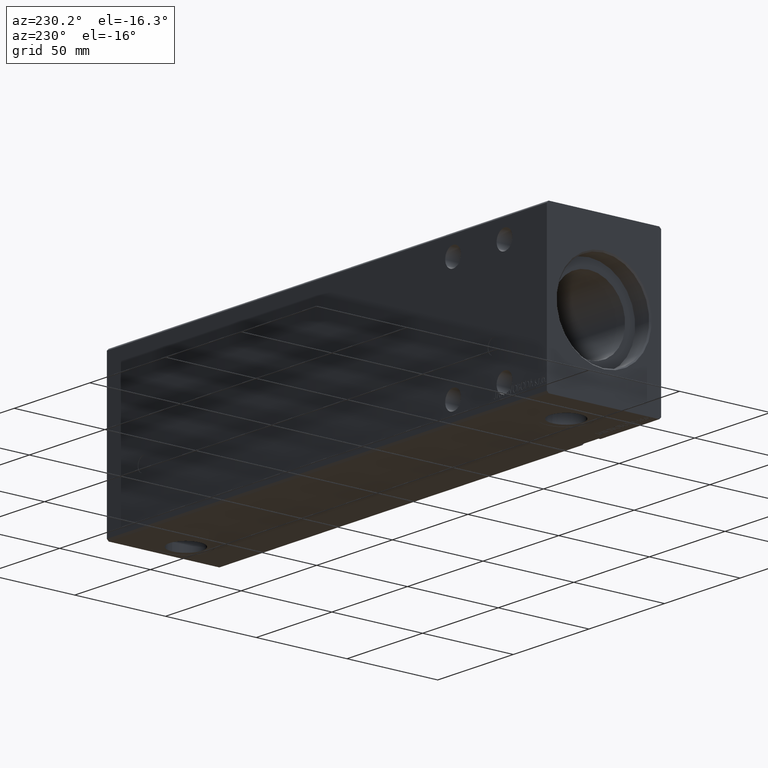
[diagram: clean part render]
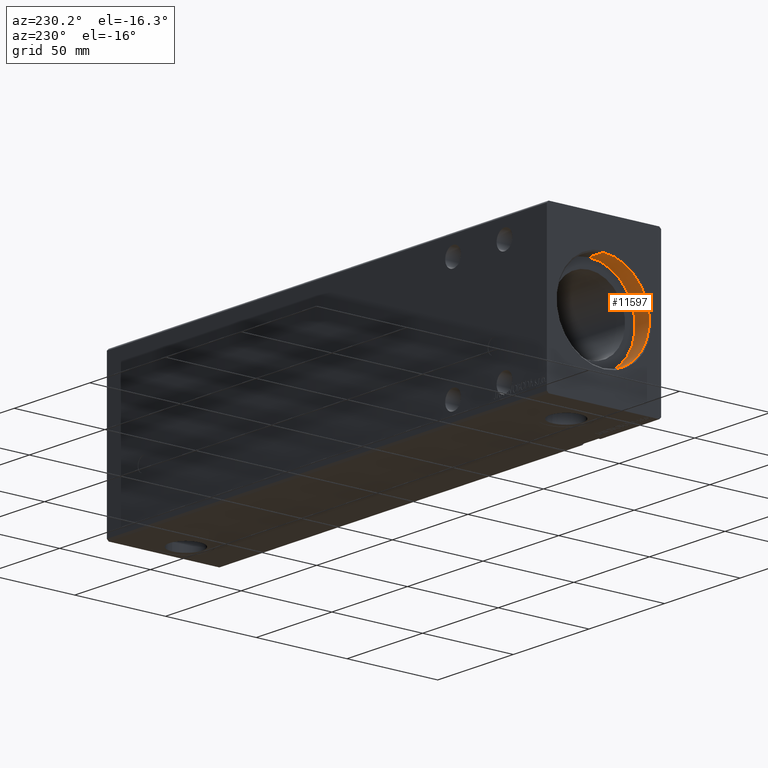
[diagram: same view with one face highlighted and labeled with its STEP entity id]
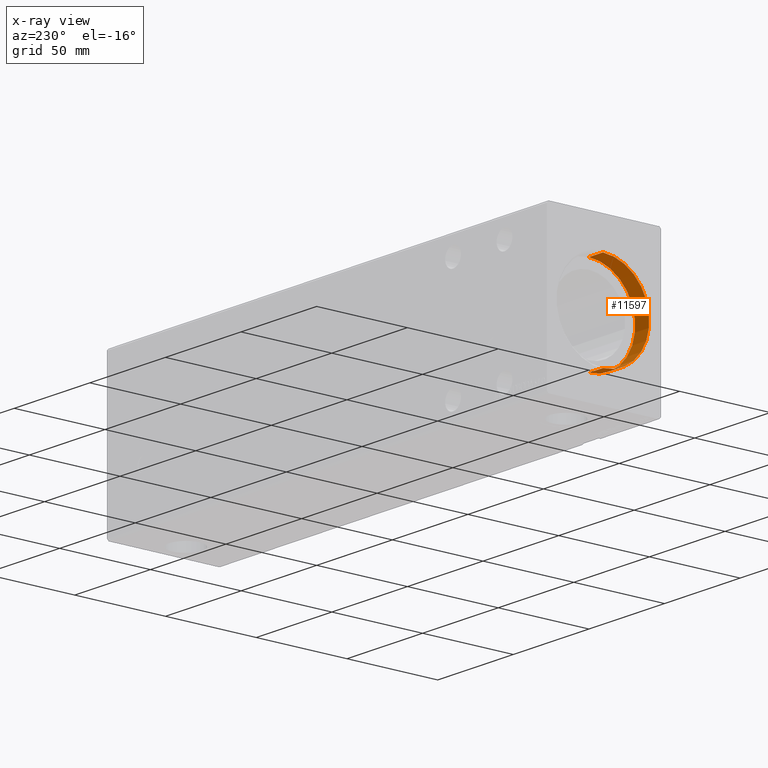
[diagram: x-ray of the same camera — body ghosted, the highlighted face saturated]
A machine part, auxiliary view. The second image highlights one B-rep face of the part: STEP entity #11597.
The next image is the same camera in x-ray: the body ghosted, the highlighted face saturated — about 0% of this face is hidden behind the body in this view.
In plain terms, the highlighted cylindrical surface (partial cylindrical patch) has radius 25.5 mm, axis along (-1, -0, -0).
Its self-contained STEP definition (entity closure, byte-faithful):
#993 = ORIENTED_EDGE ( 'NONE', *, *, #34155, .T. ) ;
#2969 = DIRECTION ( 'NONE',  ( 0.000000000000000000, 0.000000000000000000, 1.000000000000000000 ) ) ;
#3179 = DIRECTION ( 'NONE',  ( -1.000000000000000000, -0.000000000000000000, -0.000000000000000000 ) ) ;
#5445 = LINE ( 'NONE', #21185, #13647 ) ;
#5658 = VERTEX_POINT ( 'NONE', #8551 ) ;
#5669 = CARTESIAN_POINT ( 'NONE',  ( 10.00000000000000000, 3.122849337825750222E-15, -25.50000000000000000 ) ) ;
#7817 = ORIENTED_EDGE ( 'NONE', *, *, #11875, .F. ) ;
#8551 = CARTESIAN_POINT ( 'NONE',  ( 10.00000000000000000, 0.000000000000000000, 25.50000000000000000 ) ) ;
#9288 = CARTESIAN_POINT ( 'NONE',  ( 0.7000000000000061728, 0.000000000000000000, 0.000000000000000000 ) ) ;
#10010 = CARTESIAN_POINT ( 'NONE',  ( 10.00000000000000000, 0.000000000000000000, 0.000000000000000000 ) ) ;
#11597 = ADVANCED_FACE ( 'NONE', ( #13119 ), #38356, .F. ) ;
#11875 = EDGE_CURVE ( 'NONE', #5658, #38598, #22586, .T. ) ;
#12160 = EDGE_CURVE ( 'NONE', #22215, #38598, #37060, .T. ) ;
#13119 = FACE_OUTER_BOUND ( 'NONE', #34117, .T. ) ;
#13647 = VECTOR ( 'NONE', #25105, 1000.000000000000000 ) ;
#13924 = VECTOR ( 'NONE', #31287, 1000.000000000000000 ) ;
#15552 = AXIS2_PLACEMENT_3D ( 'NONE', #34813, #22592, #28203 ) ;
#18616 = DIRECTION ( 'NONE',  ( -1.000000000000000000, 0.000000000000000000, 0.000000000000000000 ) ) ;
#21185 = CARTESIAN_POINT ( 'NONE',  ( 10.00000000000000000, 3.122849337825750222E-15, -25.50000000000000000 ) ) ;
#22215 = VERTEX_POINT ( 'NONE', #37048 ) ;
#22586 = LINE ( 'NONE', #35013, #13924 ) ;
#22592 = DIRECTION ( 'NONE',  ( -1.000000000000000000, 0.000000000000000000, 0.000000000000000000 ) ) ;
#24519 = ORIENTED_EDGE ( 'NONE', *, *, #12160, .T. ) ;
#25105 = DIRECTION ( 'NONE',  ( -1.000000000000000000, -0.000000000000000000, -0.000000000000000000 ) ) ;
#28203 = DIRECTION ( 'NONE',  ( 0.000000000000000000, 0.000000000000000000, 1.000000000000000000 ) ) ;
#31287 = DIRECTION ( 'NONE',  ( -1.000000000000000000, -0.000000000000000000, -0.000000000000000000 ) ) ;
#31755 = AXIS2_PLACEMENT_3D ( 'NONE', #10010, #3179, #2969 ) ;
#32198 = EDGE_CURVE ( 'NONE', #35556, #5658, #33418, .T. ) ;
#33126 = AXIS2_PLACEMENT_3D ( 'NONE', #9288, #18616, #34549 ) ;
#33418 = CIRCLE ( 'NONE', #15552, 25.50000000000000000 ) ;
#34117 = EDGE_LOOP ( 'NONE', ( #40537, #993, #24519, #7817 ) ) ;
#34155 = EDGE_CURVE ( 'NONE', #35556, #22215, #5445, .T. ) ;
#34549 = DIRECTION ( 'NONE',  ( 0.000000000000000000, 0.000000000000000000, -1.000000000000000000 ) ) ;
#34813 = CARTESIAN_POINT ( 'NONE',  ( 10.00000000000000000, 0.000000000000000000, 0.000000000000000000 ) ) ;
#35013 = CARTESIAN_POINT ( 'NONE',  ( 10.00000000000000000, 0.000000000000000000, 25.50000000000000000 ) ) ;
#35556 = VERTEX_POINT ( 'NONE', #5669 ) ;
#36754 = CARTESIAN_POINT ( 'NONE',  ( 0.7000000000000061728, 0.000000000000000000, 25.50000000000000000 ) ) ;
#37048 = CARTESIAN_POINT ( 'NONE',  ( 0.7000000000000061728, 3.122849337825750222E-15, -25.50000000000000000 ) ) ;
#37060 = CIRCLE ( 'NONE', #33126, 25.50000000000000000 ) ;
#38356 = CYLINDRICAL_SURFACE ( 'NONE', #31755, 25.50000000000000000 ) ;
#38598 = VERTEX_POINT ( 'NONE', #36754 ) ;
#40537 = ORIENTED_EDGE ( 'NONE', *, *, #32198, .F. ) ;